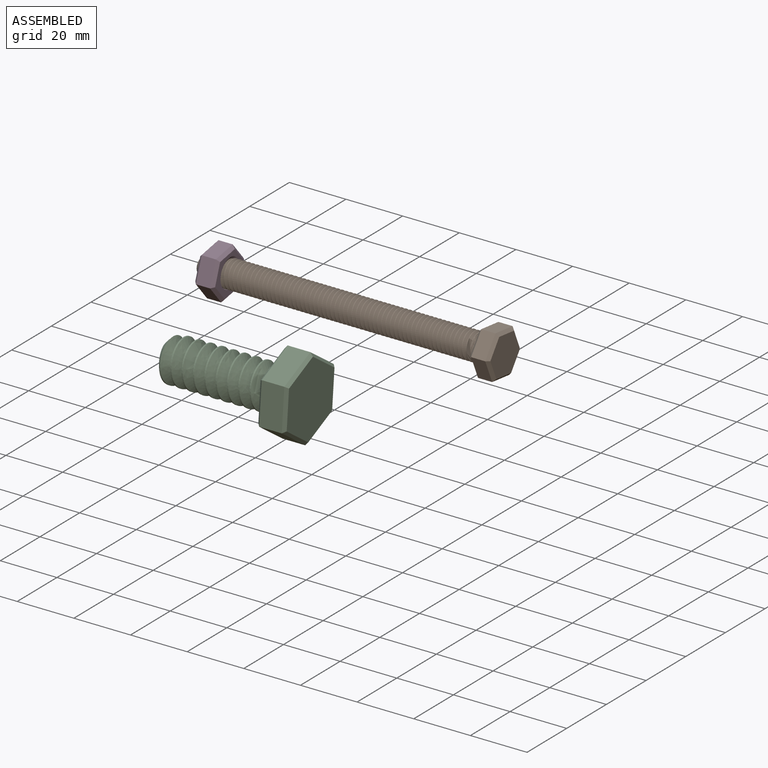
[diagram: assembled view]
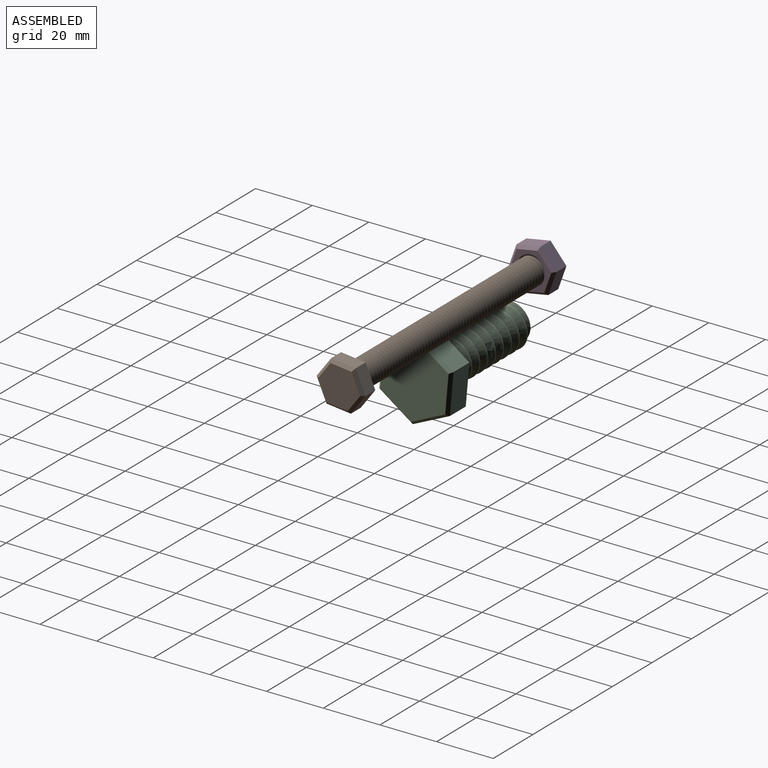
[diagram: assembled view, second angle]
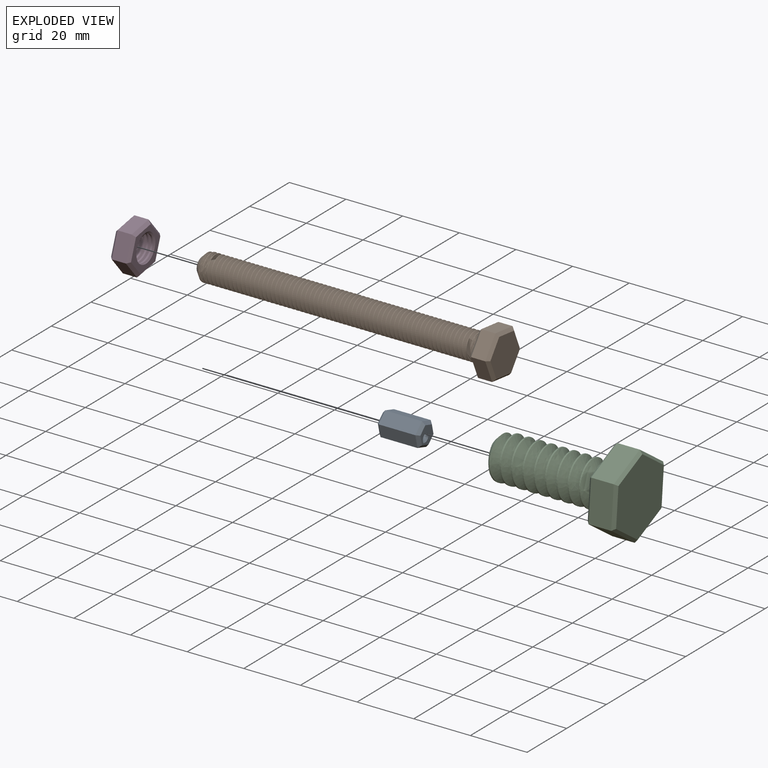
[diagram: exploded view]
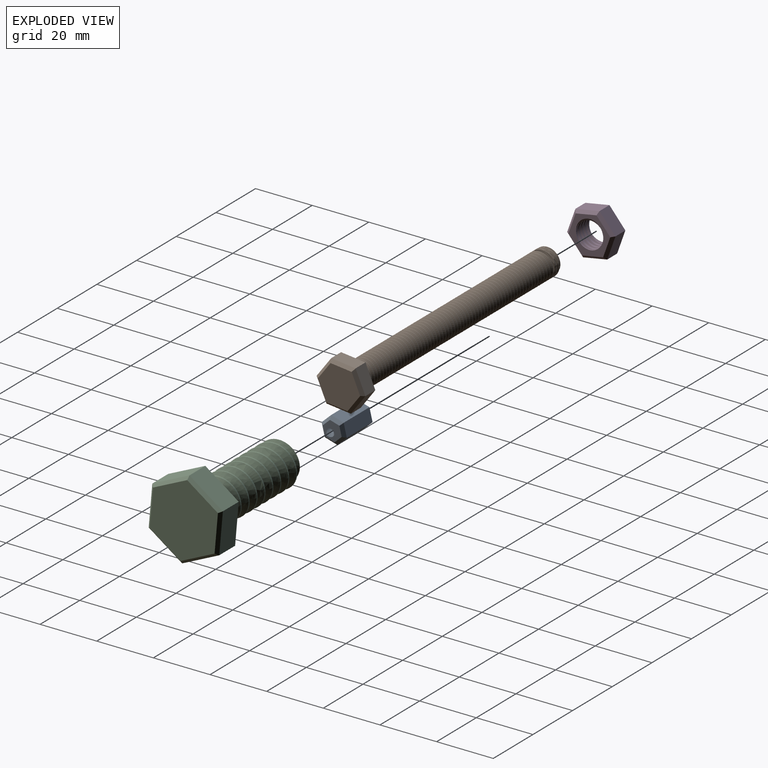
[diagram: exploded view, second angle]
ASSEMBLY  parts=4 mates=2
PART A: 23 faces, bbox 18.6x8x9.2 mm
  f0: cylinder r=0.43mm len=15mm, axis (1,0,0), area 14.6mm2, adj f7,f8,f21,f22
  f1: plane 13x3.98mm, normal (0,-0.51,0.86), area 60mm2, adj f2,f6,f14,f18
  f2: plane 13x4.62mm, normal (0,-1,-0.01), area 60mm2, adj f1,f3,f12,f16
  f3: plane 13x4.02mm, normal (0,-0.49,-0.87), area 60mm2, adj f2,f4,f10,f15
  f4: plane 13x3.98mm, normal (0,0.51,-0.86), area 60mm2, adj f3,f5,f9,f17
  f5: plane 13x4.62mm, normal (0,1,0.01), area 60mm2, adj f4,f6,f11,f19
  f6: plane 13x4.02mm, normal (0,0.49,0.87), area 60mm2, adj f1,f5,f13,f20
  f7: plane 6.93x6.03mm, normal (-1,0,0), area 25.1mm2, adj f0,f9,f10,f11,f12,f13,f14,f21
  f8: plane 6.93x6.03mm, normal (1,0,0), area 25.2mm2, adj f0,f15,f16,f17,f18,f19,f20,f21
  f9: plane 3.99x2.91mm, normal (-0.71,0.36,-0.61), area 5.7mm2, adj f4,f7,f10,f11
  f10: plane 4.02x2.87mm, normal (-0.71,-0.35,-0.61), area 5.7mm2, adj f3,f7,f9,f12
  f11: plane 4.62x1.03mm, normal (-0.71,0.71,0.01), area 5.7mm2, adj f5,f7,f9,f13
  f12: plane 4.62x1.03mm, normal (-0.71,-0.71,-0.01), area 5.7mm2, adj f2,f7,f10,f14
  f13: plane 4.02x2.87mm, normal (-0.71,0.35,0.61), area 5.7mm2, adj f6,f7,f11,f14
  f14: plane 3.99x2.91mm, normal (-0.71,-0.36,0.61), area 5.7mm2, adj f1,f7,f12,f13
  f15: plane 4.02x2.87mm, normal (0.71,-0.35,-0.61), area 5.7mm2, adj f3,f8,f16,f17
  f16: plane 4.62x1.03mm, normal (0.71,-0.71,-0.01), area 5.7mm2, adj f2,f8,f15,f18
  f17: plane 3.99x2.91mm, normal (0.71,0.36,-0.61), area 5.7mm2, adj f4,f8,f15,f19
  f18: plane 3.99x2.91mm, normal (0.71,-0.36,0.61), area 5.7mm2, adj f1,f8,f16,f20
  f19: plane 4.62x1.03mm, normal (0.71,0.71,0.01), area 5.7mm2, adj f5,f8,f17,f20
  f20: plane 4.02x2.87mm, normal (0.71,0.35,0.61), area 5.7mm2, adj f6,f8,f18,f19
  f21: bspline ~18.63x6.2mm, area 102.5mm2, adj f0,f7,f8,f22
  f22: bspline ~17.97x6.2mm, area 102.6mm2, adj f0,f7,f8,f21
PART B: 25 faces, bbox 107.8x15.9x18.1 mm
  f0: cylinder r=4.75mm len=98mm, axis (1,0,0), area -1247.3mm2, adj f1,f2,f4,f12
  f1: bspline ~100.16x10.97mm, area 2269.2mm2, adj f0,f2,f4,f12
  f2: bspline ~100.66x10.97mm, area 2278.8mm2, adj f0,f1,f4,f12
  f3: plane 5.5x5.5mm, normal (-1,0,0), area 23.8mm2, adj f4
  f4: cone r=4.75mm half-angle=45deg, axis (1,0,0), area 47.4mm2, adj f0,f1,f2,f3
  f5: plane 7.48x5mm, normal (0,-0.5,0.86), area 43.3mm2, adj f6,f10,f18,f22
  f6: plane 8.66x5mm, normal (0,-1,0), area 43.3mm2, adj f5,f7,f16,f20
  f7: plane 7.52x5mm, normal (0,-0.5,-0.87), area 43.3mm2, adj f6,f8,f14,f19
  f8: plane 7.48x5mm, normal (0,0.5,-0.86), area 43.3mm2, adj f7,f9,f13,f21
  f9: plane 8.66x5mm, normal (0,1,0), area 43.3mm2, adj f8,f10,f15,f23
  f10: plane 7.52x5mm, normal (0,0.5,0.87), area 43.3mm2, adj f5,f9,f17,f24
  f11: plane 15.01x13.03mm, normal (1,0,0), area 146.4mm2, adj f13,f14,f15,f16,f17,f18
  f12: plane 15.83x13.85mm, normal (-1,0,0), area 89.2mm2, adj f0,f1,f2,f19,f20,f21,f22,f23
  f13: plane 7.49x4.93mm, normal (0.71,0.36,-0.61), area 11.4mm2, adj f8,f11,f14,f15
  f14: plane 7.52x4.88mm, normal (0.71,-0.35,-0.61), area 11.4mm2, adj f7,f11,f13,f16
  f15: plane 8.66x1.03mm, normal (0.71,0.71,0), area 11.4mm2, adj f9,f11,f13,f17
  f16: plane 8.66x1.03mm, normal (0.71,-0.71,0), area 11.4mm2, adj f6,f11,f14,f18
  f17: plane 7.52x4.88mm, normal (0.71,0.35,0.61), area 11.4mm2, adj f10,f11,f15,f18
  f18: plane 7.49x4.93mm, normal (0.71,-0.36,0.61), area 11.4mm2, adj f5,f11,f16,f17
  f19: plane 7.52x4.88mm, normal (-0.71,-0.35,-0.61), area 11.4mm2, adj f7,f12,f20,f21
  f20: plane 8.66x1.03mm, normal (-0.71,-0.71,0), area 11.4mm2, adj f6,f12,f19,f22
  f21: plane 7.49x4.93mm, normal (-0.71,0.36,-0.61), area 11.4mm2, adj f8,f12,f19,f23
  f22: plane 7.49x4.93mm, normal (-0.71,-0.36,0.61), area 11.4mm2, adj f5,f12,f20,f24
  f23: plane 8.66x1.03mm, normal (-0.71,0.71,0), area 11.4mm2, adj f9,f12,f21,f24
  f24: plane 7.52x4.88mm, normal (-0.71,0.35,0.61), area 11.4mm2, adj f10,f12,f22,f23
PART C: 25 faces, bbox 54.1x27.1x30.9 mm
  f0: plane 12.48x8mm, normal (0,-0.5,0.86), area 115.5mm2, adj f1,f5,f18,f22
  f1: plane 14.43x8mm, normal (0,-1,0), area 115.5mm2, adj f0,f2,f16,f20
  f2: plane 12.52x8mm, normal (0,-0.5,-0.87), area 115.5mm2, adj f1,f3,f14,f19
  f3: plane 12.48x8mm, normal (0,0.5,-0.86), area 115.5mm2, adj f2,f4,f13,f21
  f4: plane 14.43x8mm, normal (0,1,0), area 115.5mm2, adj f3,f5,f15,f23
  f5: plane 12.52x8mm, normal (0,0.5,0.87), area 115.5mm2, adj f0,f4,f17,f24
  f6: plane 26.56x23.04mm, normal (1,0,0), area 458.1mm2, adj f13,f14,f15,f16,f17,f18
  f7: plane 28.58x25.06mm, normal (-1,0,0), area 328.4mm2, adj f8,f9,f10,f19,f20,f21,f22,f23
  f8: cylinder r=7.68mm len=38mm, axis (1,0,0), area 135.5mm2, adj f7,f9,f10,f12
  f9: bspline ~43.08x17.74mm, area 1334.4mm2, adj f7,f8,f10,f11,f12
  f10: bspline ~44.42x17.74mm, area 1333mm2, adj f7,f8,f9,f11,f12
  f11: plane 11.59x10.7mm, normal (-1,0,0), area 96.2mm2, adj f9,f10,f12
  f12: cone r=7.68mm half-angle=45deg, axis (1,0,0), area 47.1mm2, adj f8,f9,f10,f11
  f13: plane 12.48x7.83mm, normal (0.71,0.36,-0.61), area 19.6mm2, adj f3,f6,f14,f15
  f14: plane 12.52x7.76mm, normal (0.71,-0.35,-0.61), area 19.6mm2, adj f2,f6,f13,f16
  f15: plane 14.43x1.04mm, normal (0.71,0.71,0), area 19.6mm2, adj f4,f6,f13,f17
  f16: plane 14.43x1.04mm, normal (0.71,-0.71,0), area 19.6mm2, adj f1,f6,f14,f18
  f17: plane 12.52x7.76mm, normal (0.71,0.35,0.61), area 19.6mm2, adj f5,f6,f15,f18
  f18: plane 12.48x7.83mm, normal (0.71,-0.36,0.61), area 19.6mm2, adj f0,f6,f16,f17
  f19: plane 12.52x7.76mm, normal (-0.71,-0.35,-0.61), area 19.6mm2, adj f2,f7,f20,f21
  f20: plane 14.43x1.04mm, normal (-0.71,-0.71,0), area 19.6mm2, adj f1,f7,f19,f22
  f21: plane 12.48x7.83mm, normal (-0.71,0.36,-0.61), area 19.6mm2, adj f3,f7,f19,f23
  f22: plane 12.48x7.83mm, normal (-0.71,-0.36,0.61), area 19.6mm2, adj f0,f7,f20,f24
  f23: plane 14.43x1.04mm, normal (-0.71,0.71,0), area 19.6mm2, adj f4,f7,f21,f24
  f24: plane 12.52x7.76mm, normal (-0.71,0.35,0.61), area 19.6mm2, adj f5,f7,f22,f23
PART D: 23 faces, bbox 9.1x15.4x17.7 mm
  f0: plane 7.49x5mm, normal (0,-0.5,0.86), area 43.3mm2, adj f1,f5,f13,f17
  f1: plane 8.66x5mm, normal (0,-1,0), area 43.3mm2, adj f0,f2,f11,f15
  f2: plane 7.51x5mm, normal (0,-0.5,-0.87), area 43.3mm2, adj f1,f3,f9,f14
  f3: plane 7.49x5mm, normal (0,0.5,-0.86), area 43.3mm2, adj f2,f4,f8,f16
  f4: plane 8.66x5mm, normal (0,1,0), area 43.3mm2, adj f3,f5,f10,f18
  f5: plane 7.51x5mm, normal (0,0.5,0.87), area 43.3mm2, adj f0,f4,f12,f19
  f6: plane 15.37x13.38mm, normal (-1,0,0), area 71.4mm2, adj f8,f9,f10,f11,f12,f13,f20,f21
  f7: plane 15.37x13.38mm, normal (1,0,0), area 71.4mm2, adj f14,f15,f16,f17,f18,f19,f20,f21
  f8: plane 7.49x4.93mm, normal (-0.71,0.36,-0.61), area 11.4mm2, adj f3,f6,f9,f10
  f9: plane 7.51x4.89mm, normal (-0.71,-0.35,-0.61), area 11.4mm2, adj f2,f6,f8,f11
  f10: plane 8.66x1.02mm, normal (-0.71,0.71,0), area 11.4mm2, adj f4,f6,f8,f12
  f11: plane 8.66x1.02mm, normal (-0.71,-0.71,0), area 11.4mm2, adj f1,f6,f9,f13
  f12: plane 7.51x4.89mm, normal (-0.71,0.35,0.61), area 11.4mm2, adj f5,f6,f10,f13
  f13: plane 7.49x4.93mm, normal (-0.71,-0.36,0.61), area 11.4mm2, adj f0,f6,f11,f12
  f14: plane 7.51x4.89mm, normal (0.71,-0.35,-0.61), area 11.4mm2, adj f2,f7,f15,f16
  f15: plane 8.66x1.02mm, normal (0.71,-0.71,0), area 11.4mm2, adj f1,f7,f14,f17
  f16: plane 7.49x4.93mm, normal (0.71,0.36,-0.61), area 11.4mm2, adj f3,f7,f14,f18
  f17: plane 7.49x4.93mm, normal (0.71,-0.36,0.61), area 11.4mm2, adj f0,f7,f15,f19
  f18: plane 8.66x1.02mm, normal (0.71,0.71,0), area 11.4mm2, adj f4,f7,f16,f19
  f19: plane 7.51x4.89mm, normal (0.71,0.35,0.61), area 11.4mm2, adj f5,f7,f17,f18
  f20: cylinder r=4.66mm len=9.32mm, axis (1,0,0), area 85.4mm2, adj f6,f7,f21,f22
  f21: bspline ~12.5x10.82mm, area 128.4mm2, adj f6,f7,f20,f22
  f22: bspline ~12.5x10.82mm, area 128.5mm2, adj f6,f7,f20,f21
PLACE A rot(axis=(0,0.6,-0.8),180deg) t=(-55.27,-6.86,23.48)mm fixed
PLACE B rot(axis=(1,0,0),143.4deg) t=(45.34,7.73,48.08)mm
PLACE C rot(axis=(1,0,0),174.7deg) t=(-14.77,-6.68,23.67)mm
PLACE D rot(axis=(1,0,0),100.2deg) t=(-48.16,7.38,48.02)mm fixed
MATE cylindrical C.f8 <-> A.f7  axis (-1,0,0) through (-59.77,-6.68,23.67)mm
MATE cylindrical B.f0 <-> D.f6  axis (-1,0,0) through (-58.16,7.73,48.08)mm
